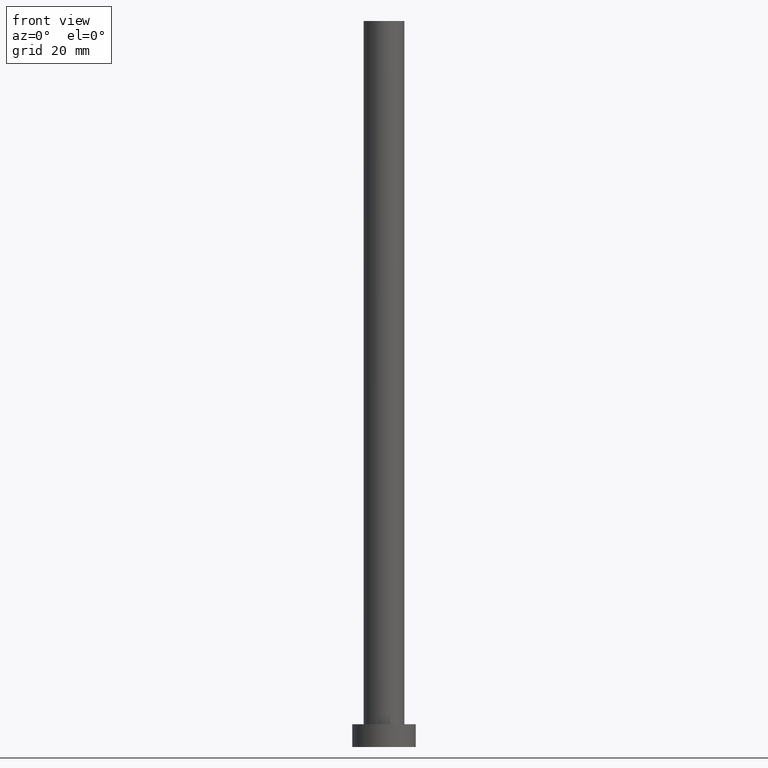
[diagram: clean part render]
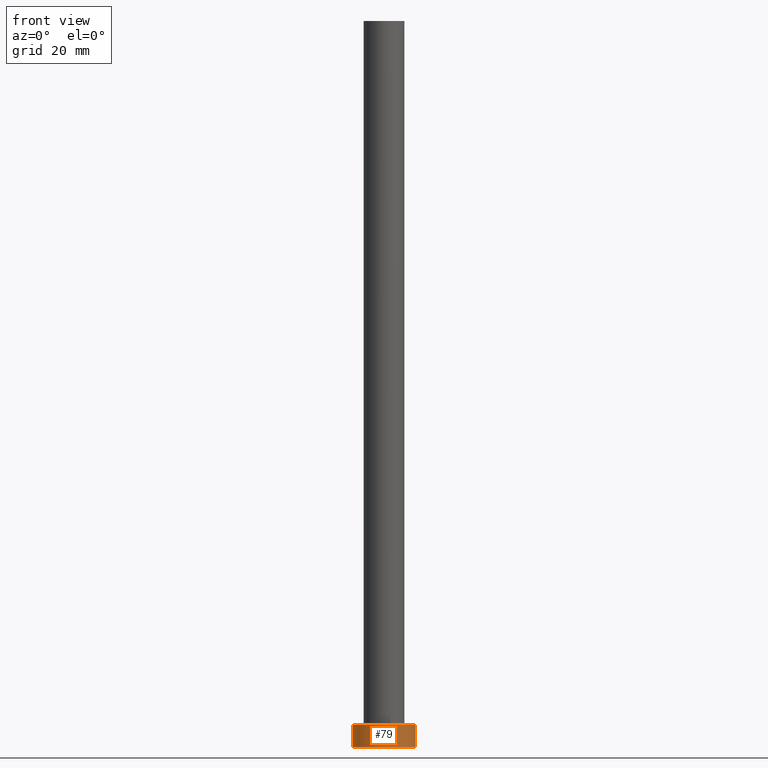
[diagram: same view with one face highlighted and labeled with its STEP entity id]
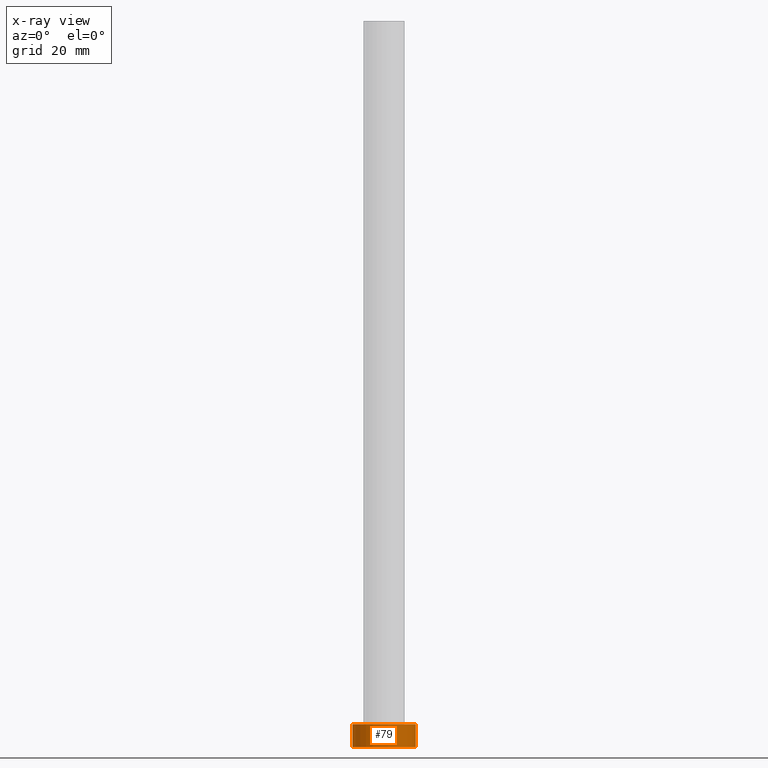
[diagram: x-ray of the same camera — body ghosted, the highlighted face saturated]
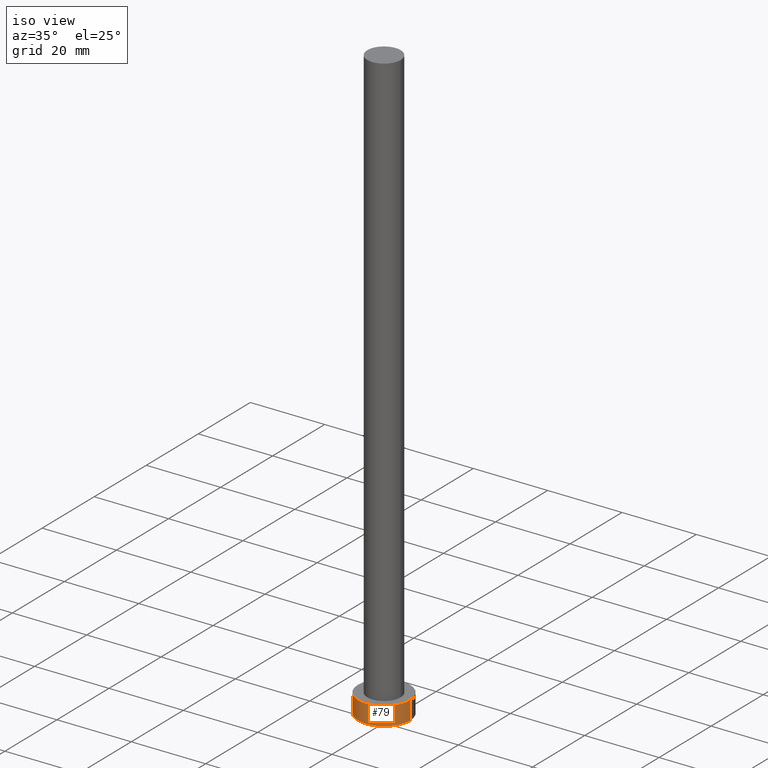
[diagram: same view with one face highlighted and labeled with its STEP entity id]
A machine part, front view. The second image highlights one B-rep face of the part: STEP entity #79.
The next image is the same camera in x-ray: the body ghosted, the highlighted face saturated — about 0% of this face is hidden behind the body in this view.
A second angle (iso view) of the same face is appended — the face is thin or edge-on in the first view.
In plain terms, the highlighted cylindrical surface (edge-blend (fillet) strip) has radius 7 mm, axis along (-0, -0, -1).
Its self-contained STEP definition (entity closure, byte-faithful):
#1 = CIRCLE ( 'NONE', #120, 7.000000000000000000 ) ;
#7 = DIRECTION ( 'NONE',  ( -0.000000000000000000, -0.000000000000000000, -1.000000000000000000 ) ) ;
#8 = EDGE_CURVE ( 'NONE', #94, #90, #1, .T. ) ;
#12 = DIRECTION ( 'NONE',  ( -0.000000000000000000, -0.000000000000000000, -1.000000000000000000 ) ) ;
#14 = CARTESIAN_POINT ( 'NONE',  ( -7.000000000000000000, 0.000000000000000000, 0.000000000000000000 ) ) ;
#23 = CIRCLE ( 'NONE', #158, 7.000000000000000000 ) ;
#29 = DIRECTION ( 'NONE',  ( 0.000000000000000000, 0.000000000000000000, 1.000000000000000000 ) ) ;
#48 = LINE ( 'NONE', #157, #107 ) ;
#49 = CARTESIAN_POINT ( 'NONE',  ( 7.000000000000000000, 8.572527594031473190E-16, 0.000000000000000000 ) ) ;
#54 = ORIENTED_EDGE ( 'NONE', *, *, #108, .F. ) ;
#55 = EDGE_CURVE ( 'NONE', #94, #172, #211, .T. ) ;
#62 = EDGE_LOOP ( 'NONE', ( #54, #129, #166, #109 ) ) ;
#67 = AXIS2_PLACEMENT_3D ( 'NONE', #97, #140, #254 ) ;
#75 = VECTOR ( 'NONE', #12, 1000.000000000000000 ) ;
#79 = ADVANCED_FACE ( 'NONE', ( #250 ), #183, .T. ) ;
#90 = VERTEX_POINT ( 'NONE', #126 ) ;
#94 = VERTEX_POINT ( 'NONE', #210 ) ;
#97 = CARTESIAN_POINT ( 'NONE',  ( 0.000000000000000000, 0.000000000000000000, 5.000000000000000000 ) ) ;
#98 = VERTEX_POINT ( 'NONE', #49 ) ;
#107 = VECTOR ( 'NONE', #7, 1000.000000000000000 ) ;
#108 = EDGE_CURVE ( 'NONE', #90, #98, #48, .T. ) ;
#109 = ORIENTED_EDGE ( 'NONE', *, *, #154, .T. ) ;
#112 = DIRECTION ( 'NONE',  ( 1.000000000000000000, 0.000000000000000000, 0.000000000000000000 ) ) ;
#120 = AXIS2_PLACEMENT_3D ( 'NONE', #249, #139, #161 ) ;
#126 = CARTESIAN_POINT ( 'NONE',  ( 7.000000000000000000, 8.572527594031473190E-16, 5.000000000000000000 ) ) ;
#129 = ORIENTED_EDGE ( 'NONE', *, *, #8, .F. ) ;
#139 = DIRECTION ( 'NONE',  ( 0.000000000000000000, 0.000000000000000000, 1.000000000000000000 ) ) ;
#140 = DIRECTION ( 'NONE',  ( -0.000000000000000000, -0.000000000000000000, -1.000000000000000000 ) ) ;
#154 = EDGE_CURVE ( 'NONE', #172, #98, #23, .T. ) ;
#157 = CARTESIAN_POINT ( 'NONE',  ( 7.000000000000000000, 8.572527594031473190E-16, 5.000000000000000000 ) ) ;
#158 = AXIS2_PLACEMENT_3D ( 'NONE', #221, #29, #112 ) ;
#161 = DIRECTION ( 'NONE',  ( 1.000000000000000000, 0.000000000000000000, 0.000000000000000000 ) ) ;
#166 = ORIENTED_EDGE ( 'NONE', *, *, #55, .T. ) ;
#172 = VERTEX_POINT ( 'NONE', #14 ) ;
#183 = CYLINDRICAL_SURFACE ( 'NONE', #67, 7.000000000000000000 ) ;
#210 = CARTESIAN_POINT ( 'NONE',  ( -7.000000000000000000, 0.000000000000000000, 5.000000000000000000 ) ) ;
#211 = LINE ( 'NONE', #225, #75 ) ;
#221 = CARTESIAN_POINT ( 'NONE',  ( 0.000000000000000000, 0.000000000000000000, 0.000000000000000000 ) ) ;
#225 = CARTESIAN_POINT ( 'NONE',  ( -7.000000000000000000, 0.000000000000000000, 5.000000000000000000 ) ) ;
#249 = CARTESIAN_POINT ( 'NONE',  ( 0.000000000000000000, 0.000000000000000000, 5.000000000000000000 ) ) ;
#250 = FACE_OUTER_BOUND ( 'NONE', #62, .T. ) ;
#254 = DIRECTION ( 'NONE',  ( -1.000000000000000000, 0.000000000000000000, 0.000000000000000000 ) ) ;